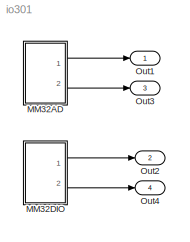
MODEL io301
KIND model
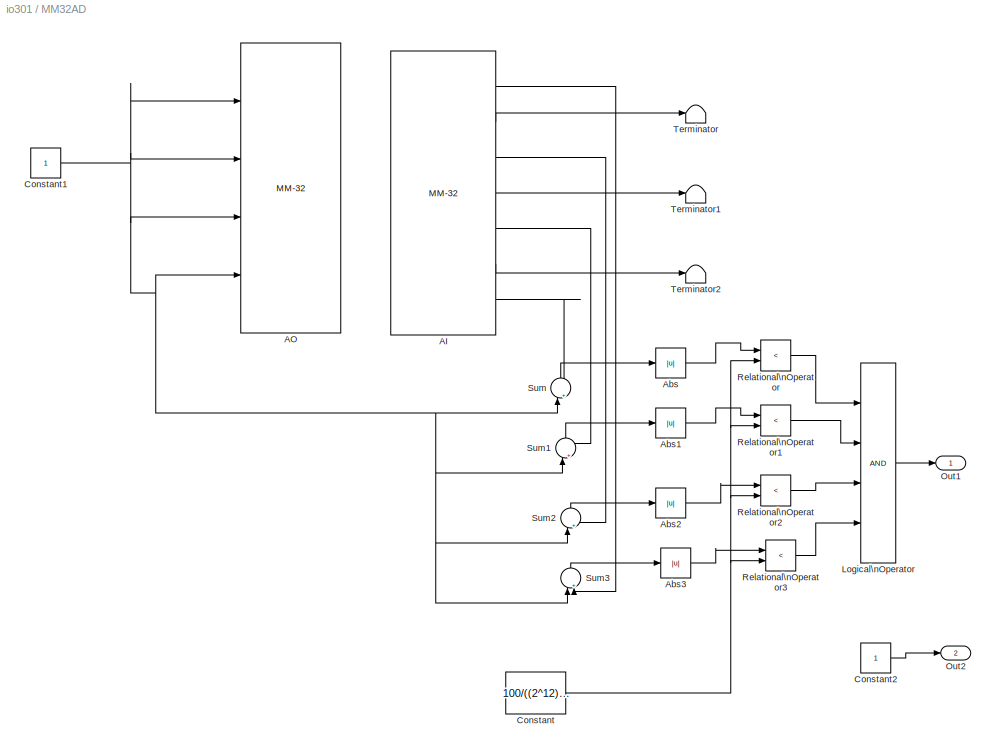
BLOCK [SubSystem] MM32AD
  MinAlgLoopOccurrences = off
  Ports = [0, 2]
  PropExecContextAcrossSSBoundary = on
  RTWSystemCode = Auto
  TreatAsAtomicUnit = off
BLOCK [Reference] MM32AD/AI  REF=xpcdiamondlib/A//D/MM-32 
  Ports = [0, 7]
  SourceBlock = xpcdiamondlib/A//D/MM-32
  SourceType = addiamondmm32
  base = 0x280
  configuration = 1-16 DI
  firstChan = 1
  numChans = 7
  range = -10V to +10V
  sampleTime = 0.001
BLOCK [Reference] MM32AD/AO  REF=xpcdiamondlib/D//A/MM-32 
  Ports = [4]
  SourceBlock = xpcdiamondlib/D//A/MM-32
  SourceType = dadiamondmm32
  baseaddress = 0x280
  channel = [1 2 3 4]
  initValue = [0]
  range = +-10V
  reset = [1]
  sampletime = 0.001
BLOCK [Abs] MM32AD/Abs
BLOCK [Abs] MM32AD/Abs1
BLOCK [Abs] MM32AD/Abs2
BLOCK [Abs] MM32AD/Abs3
BLOCK [Constant] MM32AD/Constant
  Value = 100/((2^12)-1)
BLOCK [Constant] MM32AD/Constant1
BLOCK [Constant] MM32AD/Constant2
BLOCK [Logic] MM32AD/Logical\nOperator
  AllPortsSameDT = off
  Inputs = 4
  Ports = [4, 1]
BLOCK [Outport] MM32AD/Out1
  IconDisplay = Port number
BLOCK [Outport] MM32AD/Out2
  IconDisplay = Port number
  Port = 2
BLOCK [RelationalOperator] MM32AD/Relational\nOperator
  InputSameDT = off
  Operator = <
BLOCK [RelationalOperator] MM32AD/Relational\nOperator1
  InputSameDT = off
  Operator = <
BLOCK [RelationalOperator] MM32AD/Relational\nOperator2
  InputSameDT = off
  Operator = <
BLOCK [RelationalOperator] MM32AD/Relational\nOperator3
  InputSameDT = off
  Operator = <
BLOCK [Sum] MM32AD/Sum
  IconShape = round
  InputSameDT = off
  Inputs = |+-
  OutDataTypeMode = Inherit via internal rule
  Ports = [2, 1]
BLOCK [Sum] MM32AD/Sum1
  IconShape = round
  InputSameDT = off
  Inputs = |+-
  OutDataTypeMode = Inherit via internal rule
  Ports = [2, 1]
BLOCK [Sum] MM32AD/Sum2
  IconShape = round
  InputSameDT = off
  Inputs = |+-
  OutDataTypeMode = Inherit via internal rule
  Ports = [2, 1]
BLOCK [Sum] MM32AD/Sum3
  IconShape = round
  InputSameDT = off
  Inputs = |+-
  OutDataTypeMode = Inherit via internal rule
  Ports = [2, 1]
BLOCK [Terminator] MM32AD/Terminator
BLOCK [Terminator] MM32AD/Terminator1
BLOCK [Terminator] MM32AD/Terminator2
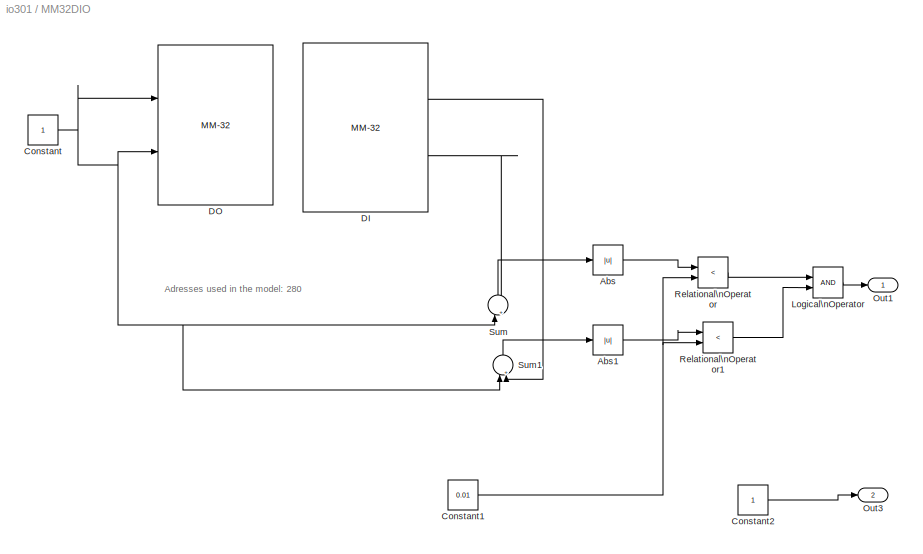
BLOCK [SubSystem] MM32DIO
  MinAlgLoopOccurrences = off
  Ports = [0, 2]
  PropExecContextAcrossSSBoundary = on
  RTWSystemCode = Auto
  TreatAsAtomicUnit = off
BLOCK [Abs] MM32DIO/Abs
BLOCK [Abs] MM32DIO/Abs1
BLOCK [Constant] MM32DIO/Constant
BLOCK [Constant] MM32DIO/Constant1
  Value = 0.01
BLOCK [Constant] MM32DIO/Constant2
BLOCK [Reference] MM32DIO/DI  REF=xpcdiamondlib/Digital\nInput/MM-32 
  Ports = [0, 2]
  SourceBlock = xpcdiamondlib/Digital\nInput/MM-32
  SourceType = didsmm32
  baseaddress = 0x280
  channel = [1,5]
  chip = 1
  port = B
  sampletime = 0.001
BLOCK [Reference] MM32DIO/DO  REF=xpcdiamondlib/Digital\nOutput/MM-32 
  Ports = [2]
  SourceBlock = xpcdiamondlib/Digital\nOutput/MM-32
  SourceType = dodsmm32
  baseaddress = 0x280
  channel = [1,5]
  chip = 1
  initValue = [0]
  port = C
  reset = [1]
  sampletime = 0.001
BLOCK [Logic] MM32DIO/Logical\nOperator
  AllPortsSameDT = off
  Ports = [2, 1]
BLOCK [Outport] MM32DIO/Out1
  IconDisplay = Port number
BLOCK [Outport] MM32DIO/Out3
  IconDisplay = Port number
  Port = 2
BLOCK [RelationalOperator] MM32DIO/Relational\nOperator
  InputSameDT = off
  Operator = <
BLOCK [RelationalOperator] MM32DIO/Relational\nOperator1
  InputSameDT = off
  Operator = <
BLOCK [Sum] MM32DIO/Sum
  IconShape = round
  InputSameDT = off
  Inputs = |+-
  OutDataTypeMode = Inherit via internal rule
  Ports = [2, 1]
BLOCK [Sum] MM32DIO/Sum1
  IconShape = round
  InputSameDT = off
  Inputs = |+-
  OutDataTypeMode = Inherit via internal rule
  Ports = [2, 1]
BLOCK [Outport] Out1
  IconDisplay = Port number
BLOCK [Outport] Out2
  IconDisplay = Port number
  Port = 2
BLOCK [Outport] Out3
  IconDisplay = Port number
  Port = 3
BLOCK [Outport] Out4
  IconDisplay = Port number
  Port = 4
ANNOTATION MM32DIO: Adresses used in the model: 280
LINE MM32AD/AI:1 -> MM32AD/Sum3:2
LINE MM32AD/AI:2 -> MM32AD/Terminator:1
LINE MM32AD/AI:3 -> MM32AD/Sum2:2
LINE MM32AD/AI:4 -> MM32AD/Terminator1:1
LINE MM32AD/AI:5 -> MM32AD/Sum1:2
LINE MM32AD/AI:6 -> MM32AD/Terminator2:1
LINE MM32AD/AI:7 -> MM32AD/Sum:2
LINE MM32AD/Abs1:1 -> MM32AD/Relational\nOperator1:1
LINE MM32AD/Abs2:1 -> MM32AD/Relational\nOperator2:1
LINE MM32AD/Abs3:1 -> MM32AD/Relational\nOperator3:1
LINE MM32AD/Abs:1 -> MM32AD/Relational\nOperator:1
NET MM32AD/Constant1:1 -> MM32AD/AO:1, MM32AD/AO:2, MM32AD/AO:3, MM32AD/AO:4, MM32AD/Sum1:1, MM32AD/Sum2:1, MM32AD/Sum3:1, MM32AD/Sum:1
LINE MM32AD/Constant2:1 -> MM32AD/Out2:1
NET MM32AD/Constant:1 -> MM32AD/Relational\nOperator1:2, MM32AD/Relational\nOperator2:2, MM32AD/Relational\nOperator3:2, MM32AD/Relational\nOperator:2
LINE MM32AD/Logical\nOperator:1 -> MM32AD/Out1:1
LINE MM32AD/Relational\nOperator1:1 -> MM32AD/Logical\nOperator:2
LINE MM32AD/Relational\nOperator2:1 -> MM32AD/Logical\nOperator:3
LINE MM32AD/Relational\nOperator3:1 -> MM32AD/Logical\nOperator:4
LINE MM32AD/Relational\nOperator:1 -> MM32AD/Logical\nOperator:1
LINE MM32AD/Sum1:1 -> MM32AD/Abs1:1
LINE MM32AD/Sum2:1 -> MM32AD/Abs2:1
LINE MM32AD/Sum3:1 -> MM32AD/Abs3:1
LINE MM32AD/Sum:1 -> MM32AD/Abs:1
LINE MM32AD:1 -> Out1:1
LINE MM32AD:2 -> Out3:1
LINE MM32DIO/Abs1:1 -> MM32DIO/Relational\nOperator1:1
LINE MM32DIO/Abs:1 -> MM32DIO/Relational\nOperator:1
NET MM32DIO/Constant1:1 -> MM32DIO/Relational\nOperator1:2, MM32DIO/Relational\nOperator:2
LINE MM32DIO/Constant2:1 -> MM32DIO/Out3:1
NET MM32DIO/Constant:1 -> MM32DIO/DO:1, MM32DIO/DO:2, MM32DIO/Sum1:1, MM32DIO/Sum:1
LINE MM32DIO/DI:1 -> MM32DIO/Sum1:2
LINE MM32DIO/DI:2 -> MM32DIO/Sum:2
LINE MM32DIO/Logical\nOperator:1 -> MM32DIO/Out1:1
LINE MM32DIO/Relational\nOperator1:1 -> MM32DIO/Logical\nOperator:2
LINE MM32DIO/Relational\nOperator:1 -> MM32DIO/Logical\nOperator:1
LINE MM32DIO/Sum1:1 -> MM32DIO/Abs1:1
LINE MM32DIO/Sum:1 -> MM32DIO/Abs:1
LINE MM32DIO:1 -> Out2:1
LINE MM32DIO:2 -> Out4:1
note: NET lines group one-source signal fan-out (src -> all destinations, sorted); 1:1 wires keep LINE
